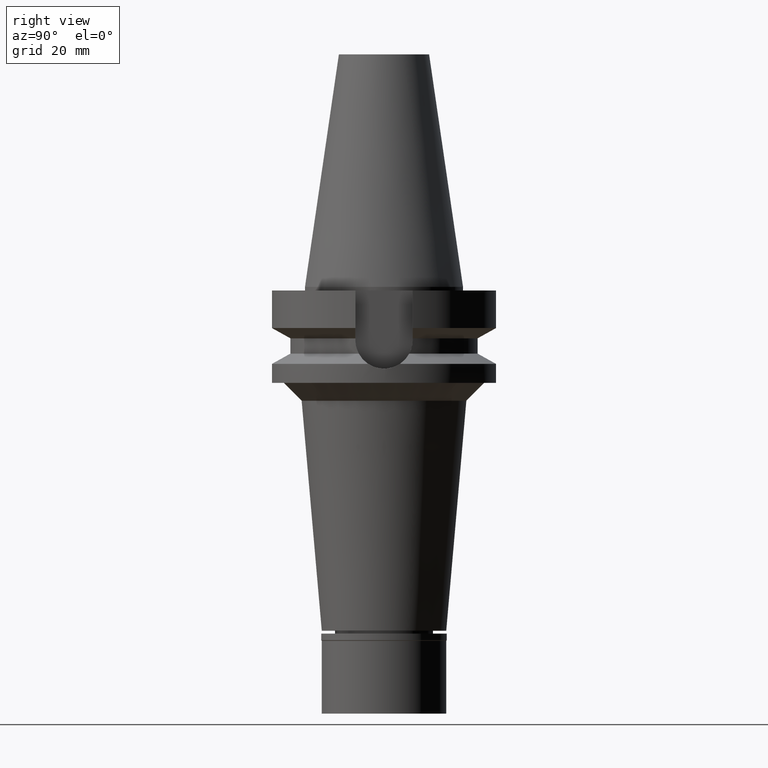
[diagram: clean part render]
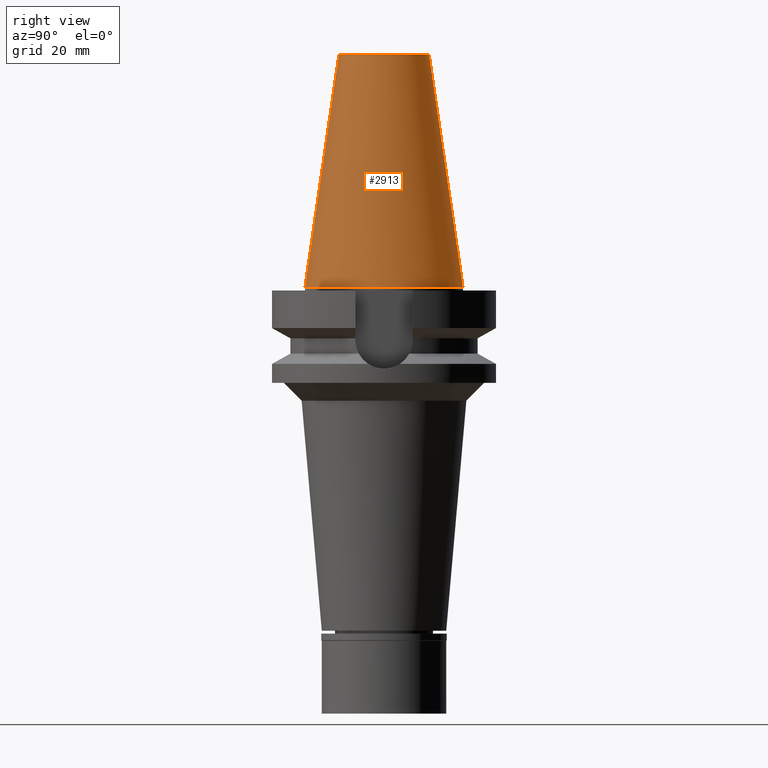
[diagram: same view with one face highlighted and labeled with its STEP entity id]
A machine part, right view. The second image highlights one B-rep face of the part: STEP entity #2913.
In plain terms, the highlighted conical surface has half-angle 8.297 deg.
Its self-contained STEP definition (entity closure, byte-faithful):
#87 = VECTOR ( 'NONE', #2084, 1000.000000000000114 ) ;
#99 = FACE_OUTER_BOUND ( 'NONE', #1505, .T. ) ;
#155 = CARTESIAN_POINT ( 'NONE',  ( 0.0000000000000000000, 1.625106302469000024E-14, 32.70000000000000284 ) ) ;
#186 = CARTESIAN_POINT ( 'NONE',  ( 0.0000000000000000000, 22.22500000000000142, 7.815970093360999808E-14 ) ) ;
#217 = VERTEX_POINT ( 'NONE', #546 ) ;
#540 = AXIS2_PLACEMENT_3D ( 'NONE', #2824, #3076, #854 ) ;
#546 = CARTESIAN_POINT ( 'NONE',  ( 0.0000000000000000000, -22.22500000000000142, 7.815970093360999808E-14 ) ) ;
#552 = VERTEX_POINT ( 'NONE', #2657 ) ;
#681 = LINE ( 'NONE', #1012, #2421 ) ;
#787 = EDGE_CURVE ( 'NONE', #552, #2203, #1332, .T. ) ;
#854 = DIRECTION ( 'NONE',  ( 0.0000000000000000000, 1.000000000000000000, 0.0000000000000000000 ) ) ;
#860 = AXIS2_PLACEMENT_3D ( 'NONE', #155, #1828, #2786 ) ;
#873 = CARTESIAN_POINT ( 'NONE',  ( 0.0000000000000000000, 12.68766899429999917, 65.40000000000000568 ) ) ;
#1012 = CARTESIAN_POINT ( 'NONE',  ( 0.0000000000000000000, -12.68766899429999917, 65.40000000000000568 ) ) ;
#1092 = ORIENTED_EDGE ( 'NONE', *, *, #2391, .F. ) ;
#1099 = VERTEX_POINT ( 'NONE', #186 ) ;
#1241 = ORIENTED_EDGE ( 'NONE', *, *, #2322, .F. ) ;
#1271 = DIRECTION ( 'NONE',  ( 0.0000000000000000000, 0.0000000000000000000, -1.000000000000000000 ) ) ;
#1332 = CIRCLE ( 'NONE', #2553, 12.68766899429999917 ) ;
#1505 = EDGE_LOOP ( 'NONE', ( #1957, #3079, #1241, #1092 ) ) ;
#1807 = CARTESIAN_POINT ( 'NONE',  ( 0.0000000000000000000, 1.625106302469000024E-14, 65.40000000000000568 ) ) ;
#1828 = DIRECTION ( 'NONE',  ( 0.0000000000000000000, 0.0000000000000000000, -1.000000000000000000 ) ) ;
#1957 = ORIENTED_EDGE ( 'NONE', *, *, #787, .T. ) ;
#2009 = CARTESIAN_POINT ( 'NONE',  ( 0.0000000000000000000, -12.68766899429999917, 65.40000000000000568 ) ) ;
#2084 = DIRECTION ( 'NONE',  ( 0.0000000000000000000, 0.1443043893539925626, -0.9895333461855498891 ) ) ;
#2191 = DIRECTION ( 'NONE',  ( 0.0000000000000000000, -0.1443043893539925626, -0.9895333461855498891 ) ) ;
#2203 = VERTEX_POINT ( 'NONE', #2009 ) ;
#2279 = LINE ( 'NONE', #873, #87 ) ;
#2322 = EDGE_CURVE ( 'NONE', #1099, #217, #3137, .T. ) ;
#2391 = EDGE_CURVE ( 'NONE', #552, #1099, #2279, .T. ) ;
#2421 = VECTOR ( 'NONE', #2191, 1000.000000000000114 ) ;
#2553 = AXIS2_PLACEMENT_3D ( 'NONE', #1807, #1271, #2710 ) ;
#2585 = CONICAL_SURFACE ( 'NONE', #860, 17.45633449714999941, 0.1448099680379422438 ) ;
#2614 = EDGE_CURVE ( 'NONE', #2203, #217, #681, .T. ) ;
#2657 = CARTESIAN_POINT ( 'NONE',  ( 0.0000000000000000000, 12.68766899429999917, 65.40000000000000568 ) ) ;
#2710 = DIRECTION ( 'NONE',  ( 0.0000000000000000000, 1.000000000000000000, 0.0000000000000000000 ) ) ;
#2786 = DIRECTION ( 'NONE',  ( 0.0000000000000000000, -1.000000000000000000, 0.0000000000000000000 ) ) ;
#2824 = CARTESIAN_POINT ( 'NONE',  ( 0.0000000000000000000, 1.625106302469000024E-14, 2.842170943039999687E-14 ) ) ;
#2913 = ADVANCED_FACE ( 'NONE', ( #99 ), #2585, .T. ) ;
#3076 = DIRECTION ( 'NONE',  ( 0.0000000000000000000, 0.0000000000000000000, -1.000000000000000000 ) ) ;
#3079 = ORIENTED_EDGE ( 'NONE', *, *, #2614, .T. ) ;
#3137 = CIRCLE ( 'NONE', #540, 22.22500000000000142 ) ;